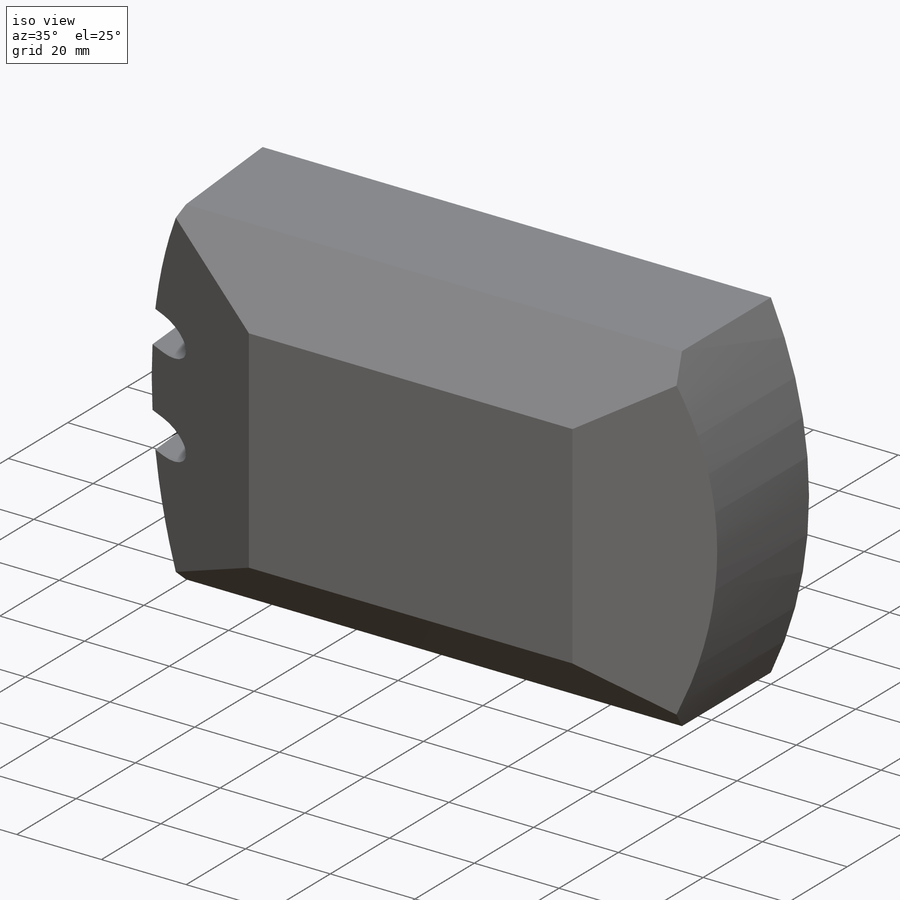
[diagram: iso view]
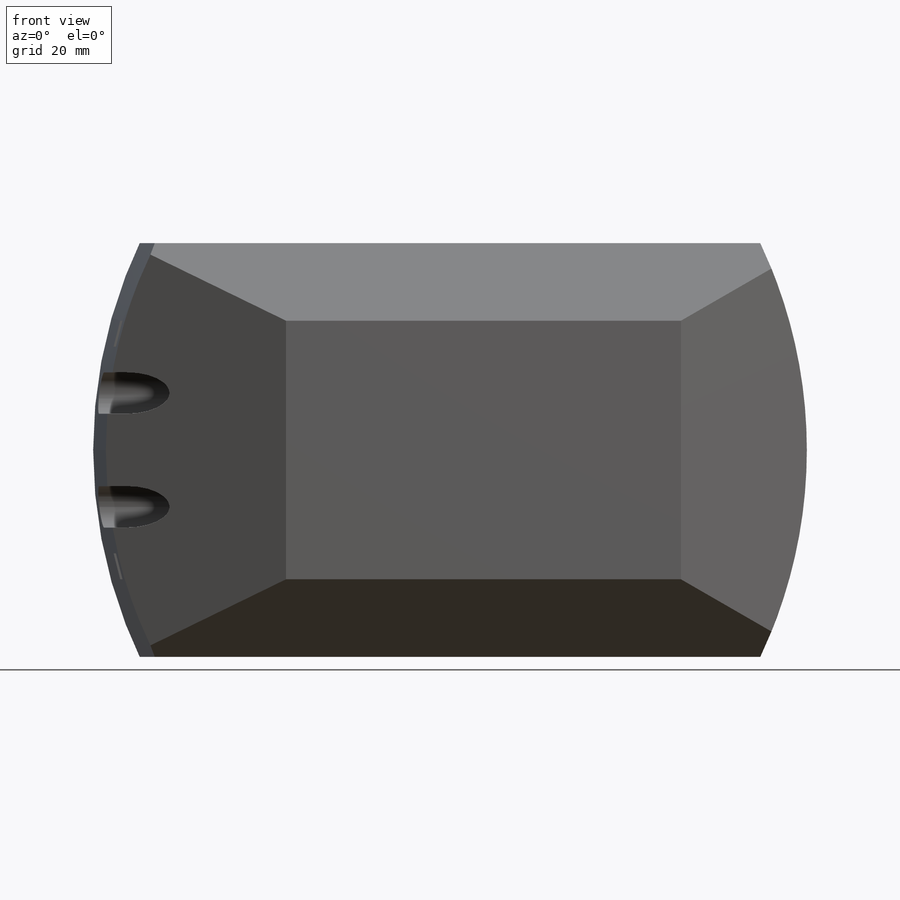
[diagram: front view]
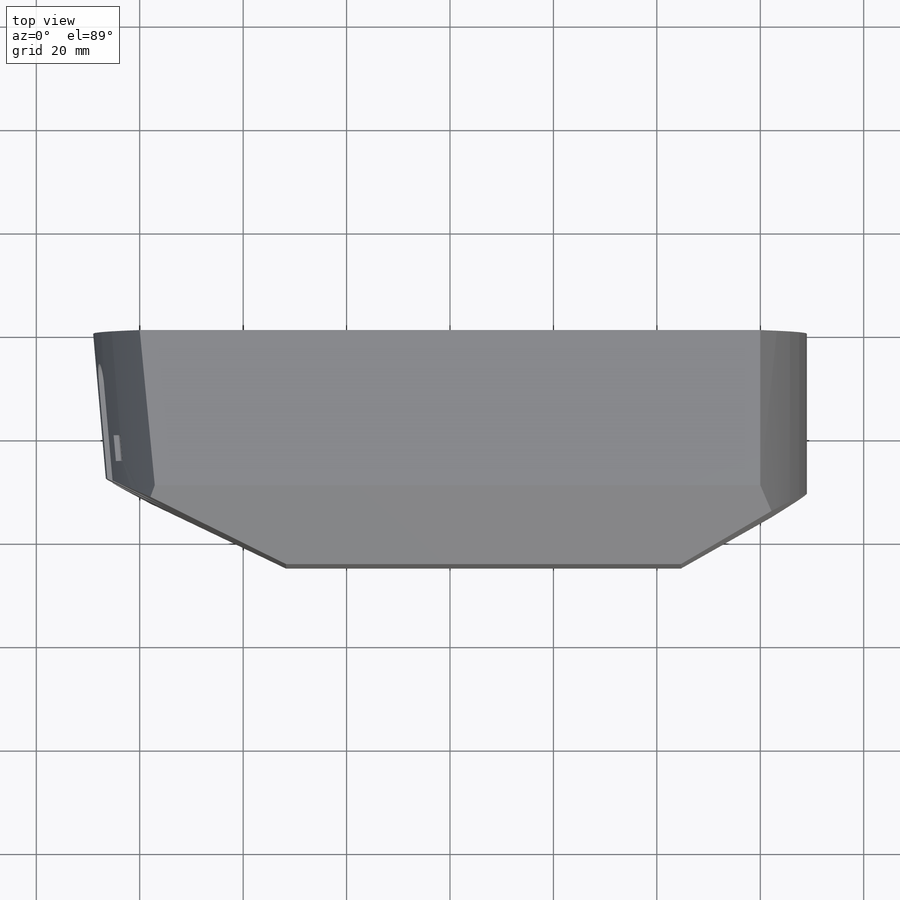
[diagram: top view]
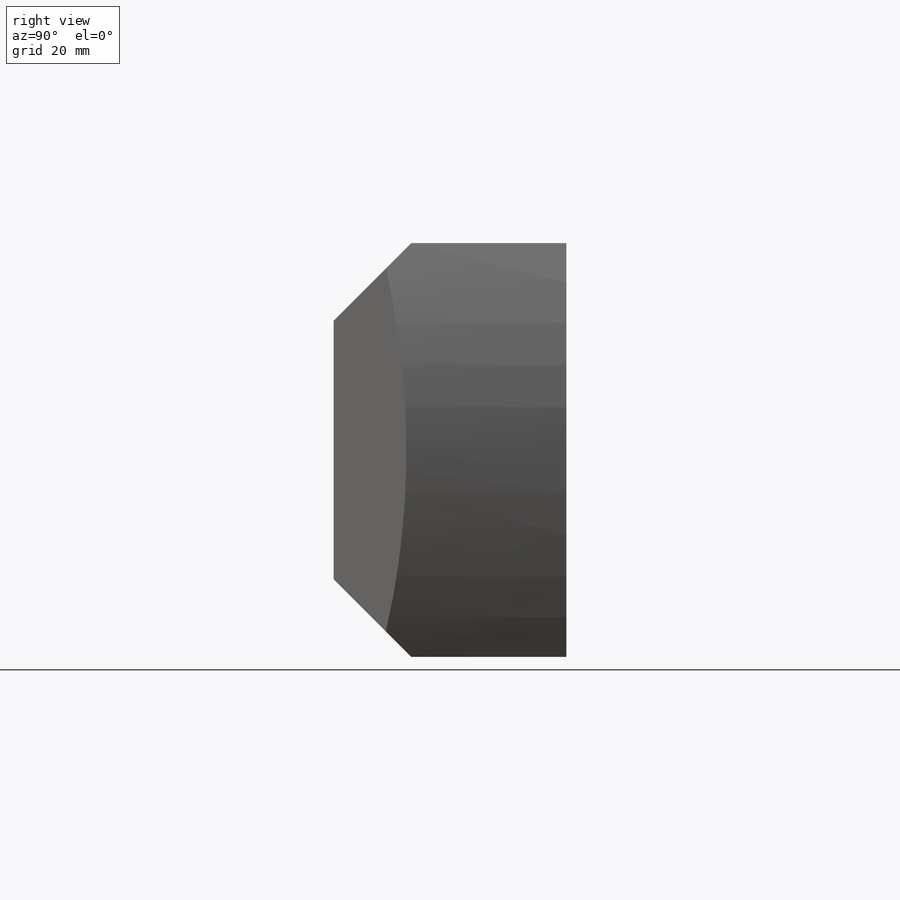
[diagram: right view]
SOLIDWORKS PART (.sldprt)
format: sldprt  version: not decoded by parser v0  size: 428,544 bytes
history: native  units: mm
features: sketch x9, cut_extrude x4, plane x3, material x1, extrude x1, sheet_metal_op x1 + 7 further entries (+10 scaffold rows collapsed)
feature tree (36):
  scaffold x10  (default folders/planes/origin — collapsed)
  material  "Materiał <nieokreślony>"
  plane  "Płaszczyzna przednia"
  plane  "Płaszczyzna górna"
  plane  "Płaszczyzna prawa"
  sketch  "Szkic1"  dims[c1.D3=~93.860952mm c2.D3=~93.860952mm c3.D3=~93.860952mm c4.D3=~93.860952mm c5.D3=~93.860952mm c6.D3=~93.860952mm c7.D3=~93.860952mm c7.D4=~90.654959mm c8.D4=~90.654959mm c9.D4=~90.654959mm c9.D1=80.0mm c9.D2=120.0mm c9.D3=9.0mm c10.D4=9.0mm]
  extrude  "Dodanie-wyciągnięcie1"  Depth=45mm
  sketch  "Szkic2"
  cut_extrude  "Wytnij-wyciągnięcie1"  Depth=99mm
  sketch  "Szkic3"  dims[D1=15.0mm D2=15.0mm D3=15.0mm D4=15.0mm]
  cut_extrude  "Wytnij-wyciągnięcie2"  Depth=360mm
  sketch  "Szkic4"  dims[D7=4.0mm D8=4.0mm D1=11.0mm D2=11.0mm D3=10.0mm D4=10.0mm D5=20.0mm D6=20.0mm]
  cut_extrude  "Wytnij-wyciągnięcie3"  Depth=360mm
  sketch  "Szkic5"  dims[D1=5.0mm D2=5.0mm D3=5.0mm D4=5.0mm D5=20.0mm D6=20.0mm D7=20.0mm D8=20.0mm]
  cut_extrude  "Wytnij-wyciągnięcie4"  Depth=360mm Ostre zgięcie2=0 Ostre zgięcie3=0 Ostre zgięcie4=0 Ostre zgięcie5=0 Ostre zgięcie6=0
  sketch  "Linie zgięcia1"
  sketch  "Ramka-graniczna1"
  sheet_metal_op  "Arkusz blachy6"
  "Rozłożony model6"
  sketch  "Linie zgięcia2"
  sketch  "Ramka-graniczna2"
  "Rozłożone-<Ostre zgięcie2>1"
  "Rozłożone-<Ostre zgięcie3>1"
  "Rozłożone-<Ostre zgięcie4>1"
  "Rozłożone-<Ostre zgięcie5>1"
  "Rozłożone-<Ostre zgięcie6>1"
  "Transformacja szkicu1"
decode coverage: 9 of 15 modeling features carry decoded parameters; 7 rows unclassified (native names shown)
note: ~ marks probable driven/reference dimensions
note: suppression state not decoded; provenance and decode notes live in map.json
